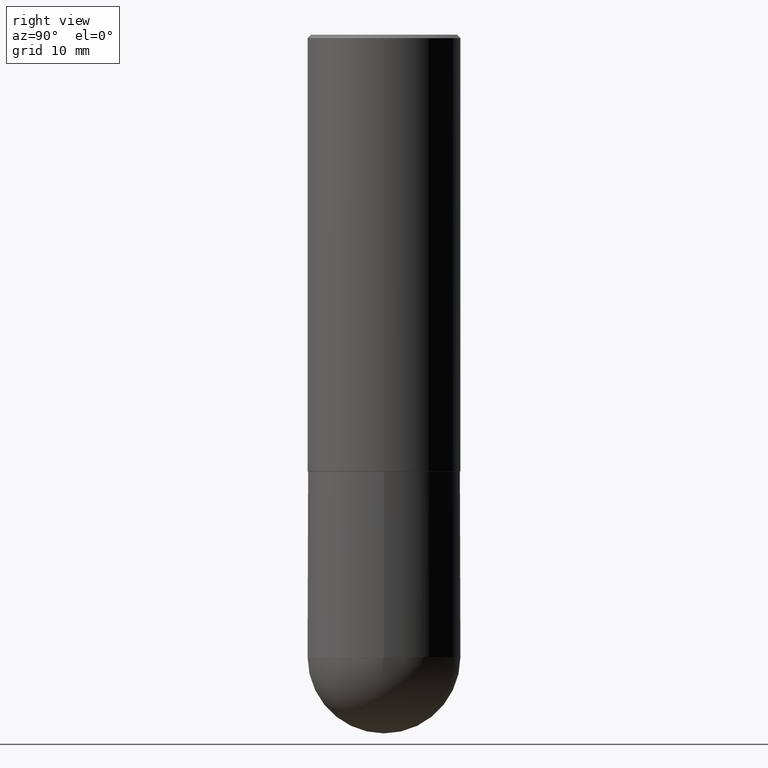
[diagram: clean part render]
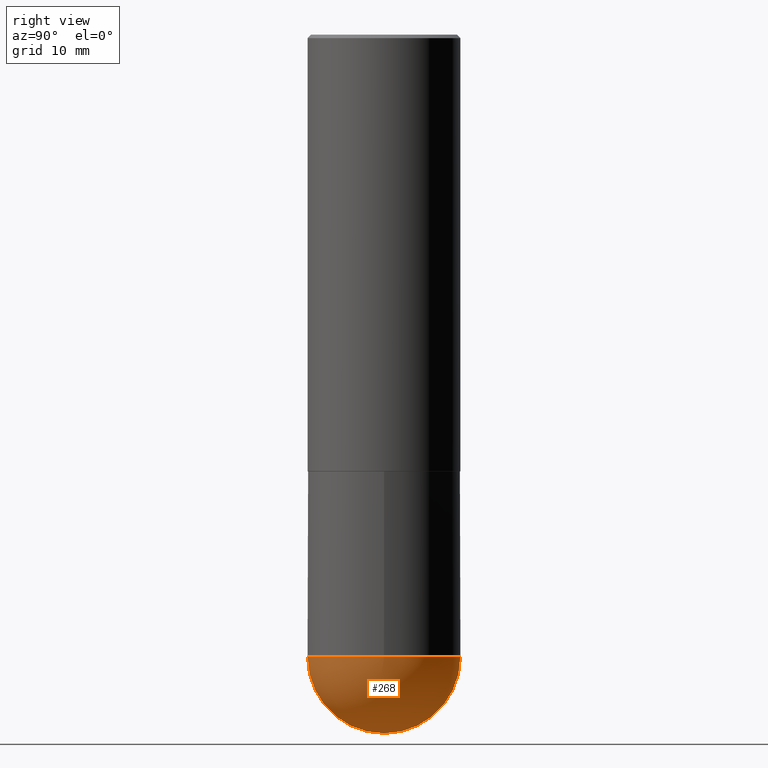
[diagram: same view with one face highlighted and labeled with its STEP entity id]
A machine part, right view. The second image highlights one B-rep face of the part: STEP entity #268.
In plain terms, the highlighted spherical surface has radius 11.1125 mm.
Its self-contained STEP definition (entity closure, byte-faithful):
#10 = DIRECTION ( 'NONE',  ( -1.000000000000000000, 6.982962677686265922E-15, -4.883557194083112340E-29 ) ) ;
#14 = ORIENTED_EDGE ( 'NONE', *, *, #248, .F. ) ;
#18 = AXIS2_PLACEMENT_3D ( 'NONE', #139, #10, #74 ) ;
#19 = EDGE_CURVE ( 'NONE', #336, #198, #59, .T. ) ;
#25 = AXIS2_PLACEMENT_3D ( 'NONE', #410, #282, #122 ) ;
#33 = DIRECTION ( 'NONE',  ( 1.000000000000000000, -6.982962677686265133E-15, 0.000000000000000000 ) ) ;
#35 = SPHERICAL_SURFACE ( 'NONE', #18, 0.4375000000000001665 ) ;
#39 = AXIS2_PLACEMENT_3D ( 'NONE', #81, #390, #132 ) ;
#59 = CIRCLE ( 'NONE', #25, 0.4374999999999998890 ) ;
#70 = CARTESIAN_POINT ( 'NONE',  ( 8.711982622034549126E-29, -1.243840226962870597E-14, -3.562500000000000000 ) ) ;
#72 = DIRECTION ( 'NONE',  ( 6.982962677686265922E-15, 1.000000000000000000, 0.000000000000000000 ) ) ;
#74 = DIRECTION ( 'NONE',  ( 6.982962677686265922E-15, 1.000000000000000000, -3.746534391310987979E-15 ) ) ;
#81 = CARTESIAN_POINT ( 'NONE',  ( 8.380862844120662879E-29, -1.291258463776875784E-14, -3.562500000000000000 ) ) ;
#95 = CARTESIAN_POINT ( 'NONE',  ( 0.4374999999999998890, -1.363859897985603030E-14, -3.562500000000000000 ) ) ;
#110 = CARTESIAN_POINT ( 'NONE',  ( 9.469462209402459055E-29, -1.441331857478128510E-14, -4.000000000000000000 ) ) ;
#122 = DIRECTION ( 'NONE',  ( 1.000000000000000000, -6.982962677686265133E-15, 0.000000000000000000 ) ) ;
#132 = DIRECTION ( 'NONE',  ( -7.105427357601001070E-15, -1.000000000000000000, 0.000000000000000000 ) ) ;
#134 = CARTESIAN_POINT ( 'NONE',  ( 3.055046171487827277E-15, 0.4374999999999873435, -3.562500000000001776 ) ) ;
#137 = DIRECTION ( 'NONE',  ( 1.000000000000000000, -6.982962677686265922E-15, 4.883557194083112340E-29 ) ) ;
#139 = CARTESIAN_POINT ( 'NONE',  ( 8.380862844120662879E-29, -1.291258463776875784E-14, -3.562500000000000000 ) ) ;
#198 = VERTEX_POINT ( 'NONE', #134 ) ;
#212 = CIRCLE ( 'NONE', #39, 0.4375000000000001665 ) ;
#223 = EDGE_CURVE ( 'NONE', #272, #293, #212, .T. ) ;
#230 = DIRECTION ( 'NONE',  ( -2.445468806185136597E-29, 3.491481338843145583E-15, 1.000000000000000000 ) ) ;
#232 = EDGE_LOOP ( 'NONE', ( #404, #364, #406, #14 ) ) ;
#245 = AXIS2_PLACEMENT_3D ( 'NONE', #409, #137, #72 ) ;
#248 = EDGE_CURVE ( 'NONE', #293, #336, #321, .T. ) ;
#255 = FACE_OUTER_BOUND ( 'NONE', #232, .T. ) ;
#268 = ADVANCED_FACE ( 'NONE', ( #255 ), #35, .T. ) ;
#272 = VERTEX_POINT ( 'NONE', #110 ) ;
#282 = DIRECTION ( 'NONE',  ( -2.445468806185136597E-29, 3.491481338843145583E-15, 1.000000000000000000 ) ) ;
#293 = VERTEX_POINT ( 'NONE', #301 ) ;
#301 = CARTESIAN_POINT ( 'NONE',  ( -3.108624468950352327E-15, -0.4375000000000127676, -3.562499999999998224 ) ) ;
#303 = CIRCLE ( 'NONE', #245, 0.4375000000000001665 ) ;
#311 = AXIS2_PLACEMENT_3D ( 'NONE', #70, #230, #33 ) ;
#321 = CIRCLE ( 'NONE', #311, 0.4374999999999998890 ) ;
#335 = EDGE_CURVE ( 'NONE', #272, #198, #303, .T. ) ;
#336 = VERTEX_POINT ( 'NONE', #95 ) ;
#364 = ORIENTED_EDGE ( 'NONE', *, *, #335, .T. ) ;
#390 = DIRECTION ( 'NONE',  ( -1.000000000000000000, 7.105427357601001070E-15, -4.926315508542082329E-29 ) ) ;
#404 = ORIENTED_EDGE ( 'NONE', *, *, #223, .F. ) ;
#406 = ORIENTED_EDGE ( 'NONE', *, *, #19, .F. ) ;
#409 = CARTESIAN_POINT ( 'NONE',  ( 8.380862844120662879E-29, -1.291258463776875784E-14, -3.562500000000000000 ) ) ;
#410 = CARTESIAN_POINT ( 'NONE',  ( 8.711982622034549126E-29, -1.243840226962870597E-14, -3.562500000000000000 ) ) ;